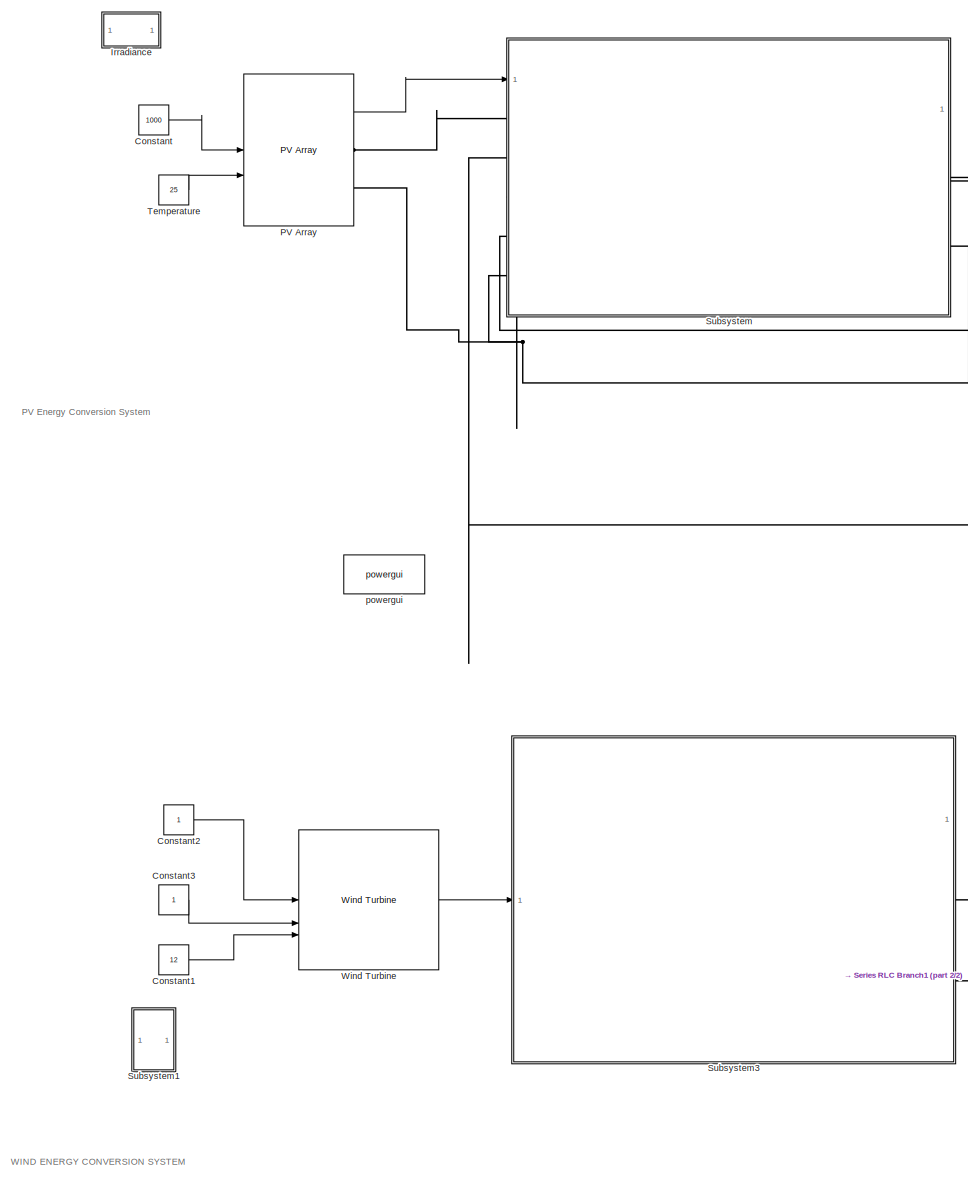
[diagram: root canvas - part 1/2, left side, full height]
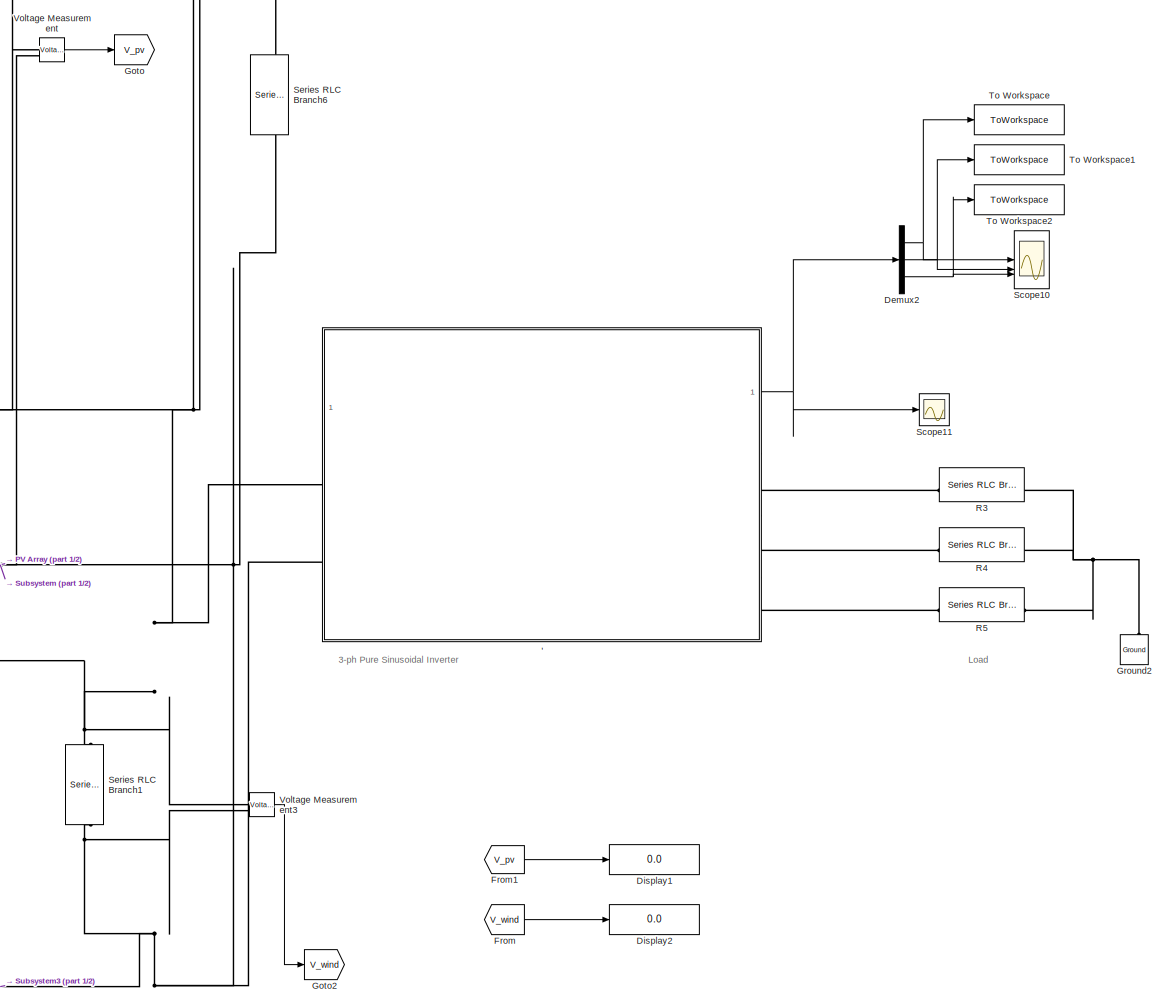
[diagram: root canvas - part 2/2, right side, full height]
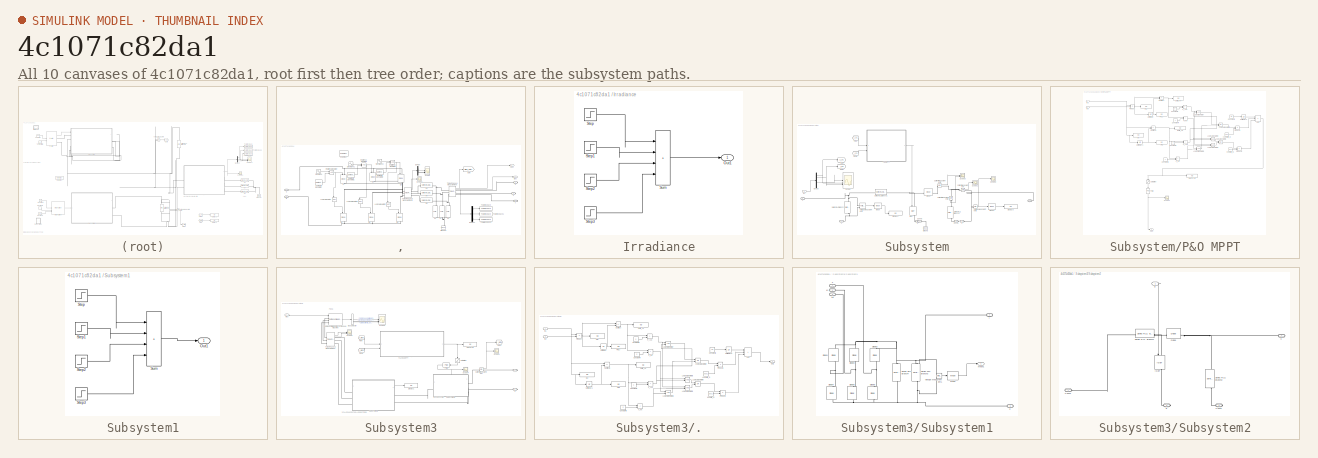
[diagram: thumbnail index - all 10 canvases of the model, root first then tree order]
MODEL slx_4c1071c82da1
KIND model
CONFIG AbsTol = auto
CONFIG EnableMultiTasking = off
CONFIG FixedStep = auto
CONFIG MaxStep = auto
CONFIG MinStep = auto
CONFIG RelTol = 1e-3
CONFIG SampleTimeConstraint = Unconstrained
CONFIG SolverName = VariableStepAuto
CONFIG StartTime = 0.0
CONFIG StopTime = 1
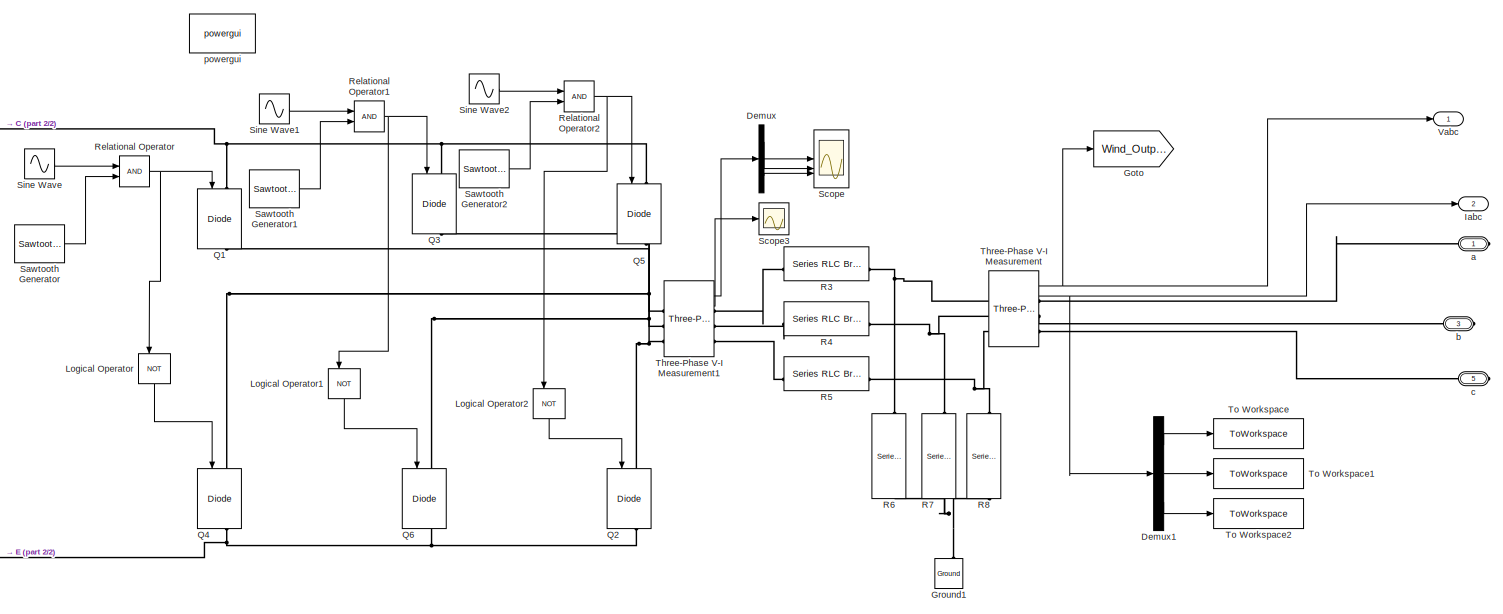
[diagram: , - part 1/2, most of the canvas]
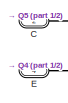
[diagram: , - part 2/2, middle left region]
BLOCK [SubSystem] ,
BLOCK [PMIOPort] ,/C
  Port = 2
  Side = Left
BLOCK [Demux] ,/Demux
  Outputs = 3
BLOCK [Demux] ,/Demux1
  Outputs = 3
BLOCK [PMIOPort] ,/E
  Port = 4
  Side = Left
BLOCK [Goto] ,/Goto
  GotoTag = Wind_Output
BLOCK [Reference] ,/Ground1  REF=spsGroundLib/Ground
  LibrarySourceBlock = sps_lib/Utilities/Ground
  NameLocation = right
  SourceBlock = spsGroundLib/Ground
  SourceType = Ground
BLOCK [Outport] ,/Iabc
  Port = 2
BLOCK [Logic] ,/Logical Operator
  AllPortsSameDT = off
  NameLocation = left
  Operator = NOT
  OutDataTypeStr = boolean
BLOCK [Logic] ,/Logical Operator1
  AllPortsSameDT = off
  NameLocation = left
  Operator = NOT
  OutDataTypeStr = boolean
BLOCK [Logic] ,/Logical Operator2
  AllPortsSameDT = off
  NameLocation = left
  Operator = NOT
  OutDataTypeStr = boolean
BLOCK [Reference] ,/Q1  REF=spsIGBTDiodeLib/IGBT//Diode
  LibrarySourceBlock = sps_lib/Power Electronics/IGBT//Diode
  NameLocation = left
  SourceBlock = spsIGBTDiodeLib/IGBT//Diode
  SourceType = IGBT/Diode
BLOCK [Reference] ,/Q2  REF=spsIGBTDiodeLib/IGBT//Diode
  LibrarySourceBlock = sps_lib/Power Electronics/IGBT//Diode
  NameLocation = left
  SourceBlock = spsIGBTDiodeLib/IGBT//Diode
  SourceType = IGBT/Diode
BLOCK [Reference] ,/Q3  REF=spsIGBTDiodeLib/IGBT//Diode
  LibrarySourceBlock = sps_lib/Power Electronics/IGBT//Diode
  NameLocation = left
  SourceBlock = spsIGBTDiodeLib/IGBT//Diode
  SourceType = IGBT/Diode
BLOCK [Reference] ,/Q4  REF=spsIGBTDiodeLib/IGBT//Diode
  LibrarySourceBlock = sps_lib/Power Electronics/IGBT//Diode
  NameLocation = left
  SourceBlock = spsIGBTDiodeLib/IGBT//Diode
  SourceType = IGBT/Diode
BLOCK [Reference] ,/Q5  REF=spsIGBTDiodeLib/IGBT//Diode
  LibrarySourceBlock = sps_lib/Power Electronics/IGBT//Diode
  NameLocation = left
  SourceBlock = spsIGBTDiodeLib/IGBT//Diode
  SourceType = IGBT/Diode
BLOCK [Reference] ,/Q6  REF=spsIGBTDiodeLib/IGBT//Diode
  LibrarySourceBlock = sps_lib/Power Electronics/IGBT//Diode
  NameLocation = left
  SourceBlock = spsIGBTDiodeLib/IGBT//Diode
  SourceType = IGBT/Diode
BLOCK [Reference] ,/R3  REF=spsSeriesRLCBranchLib/Series RLC Branch
  LibrarySourceBlock = sps_lib/Passives/Series RLC Branch
  SourceBlock = spsSeriesRLCBranchLib/Series RLC Branch
  SourceType = Series RLC Branch
BLOCK [Reference] ,/R4  REF=spsSeriesRLCBranchLib/Series RLC Branch
  LibrarySourceBlock = sps_lib/Passives/Series RLC Branch
  SourceBlock = spsSeriesRLCBranchLib/Series RLC Branch
  SourceType = Series RLC Branch
BLOCK [Reference] ,/R5  REF=spsSeriesRLCBranchLib/Series RLC Branch
  LibrarySourceBlock = sps_lib/Passives/Series RLC Branch
  SourceBlock = spsSeriesRLCBranchLib/Series RLC Branch
  SourceType = Series RLC Branch
BLOCK [Reference] ,/R6  REF=spsSeriesRLCBranchLib/Series RLC Branch
  LibrarySourceBlock = sps_lib/Passives/Series RLC Branch
  NameLocation = left
  SourceBlock = spsSeriesRLCBranchLib/Series RLC Branch
  SourceType = Series RLC Branch
BLOCK [Reference] ,/R7  REF=spsSeriesRLCBranchLib/Series RLC Branch
  LibrarySourceBlock = sps_lib/Passives/Series RLC Branch
  NameLocation = left
  SourceBlock = spsSeriesRLCBranchLib/Series RLC Branch
  SourceType = Series RLC Branch
BLOCK [Reference] ,/R8  REF=spsSeriesRLCBranchLib/Series RLC Branch
  LibrarySourceBlock = sps_lib/Passives/Series RLC Branch
  NameLocation = left
  SourceBlock = spsSeriesRLCBranchLib/Series RLC Branch
  SourceType = Series RLC Branch
BLOCK [RelationalOperator] ,/Relational Operator
  InputSameDT = off
  OutDataTypeStr = boolean
BLOCK [RelationalOperator] ,/Relational Operator1
  InputSameDT = off
  OutDataTypeStr = boolean
BLOCK [RelationalOperator] ,/Relational Operator2
  InputSameDT = off
  OutDataTypeStr = boolean
BLOCK [Reference] ,/Sawtooth Generator  REF=spsSawtoothGeneratorLib/Sawtooth
Generator
  LibrarySourceBlock = sps_lib/Sources/Signal Generator Sources/Sawtooth\nGenerator
  SourceBlock = spsSawtoothGeneratorLib/Sawtooth\nGenerator
  SourceType = Sawtooth Generator
BLOCK [Reference] ,/Sawtooth Generator1  REF=spsSawtoothGeneratorLib/Sawtooth
Generator
  LibrarySourceBlock = sps_lib/Sources/Signal Generator Sources/Sawtooth\nGenerator
  SourceBlock = spsSawtoothGeneratorLib/Sawtooth\nGenerator
  SourceType = Sawtooth Generator
BLOCK [Reference] ,/Sawtooth Generator2  REF=spsSawtoothGeneratorLib/Sawtooth
Generator
  LibrarySourceBlock = sps_lib/Sources/Signal Generator Sources/Sawtooth\nGenerator
  SourceBlock = spsSawtoothGeneratorLib/Sawtooth\nGenerator
  SourceType = Sawtooth Generator
BLOCK [Scope] ,/Scope
  Floating = off
  NumInputPorts = 3
  ScopeSpecificationString = Simulink.scopes.TimeScopeBlockCfg('CurrentConfiguration', extmgr.ConfigurationSet(extmgr.Configuration('Core','General UI',true),extmgr.Configuration('Core','Source UI',true),extmgr.Configuration('Sources','WiredSimulink',true,'DataLoggingLimitDataPoints',true,'DataLoggingSaveFormat','Array','DataLoggingDecimation','1','DataLoggingDecimateData',true),extmgr.Configuration('Visuals','Time Domain',tr...<+3336ch>
BLOCK [Scope] ,/Scope3
  Floating = off
  NumInputPorts = 1
  ScopeSpecificationString = Simulink.scopes.TimeScopeBlockCfg('CurrentConfiguration', extmgr.ConfigurationSet(extmgr.Configuration('Core','General UI',true),extmgr.Configuration('Core','Source UI',true),extmgr.Configuration('Sources','WiredSimulink',true,'DataLoggingVariableName','ScopeData3'),extmgr.Configuration('Visuals','Time Domain',true,'SerializedDisplays',{struct('MinYLimReal','-0.55918','MaxYLimReal','5.03265','YLab...<+1691ch>
BLOCK [Sin] ,/Sine Wave
  Amplitude = 0.9
  Frequency = 2*pi*50
  SampleTime = 0
BLOCK [Sin] ,/Sine Wave1
  Amplitude = 0.9
  Frequency = 2*pi*50
  Phase = 120*(pi/180)
  SampleTime = 0
BLOCK [Sin] ,/Sine Wave2
  Amplitude = 0.9
  Frequency = 2*pi*50
  Phase = 240*(pi/180)
  SampleTime = 0
BLOCK [Reference] ,/Three-Phase V-I Measurement  REF=spsThreePhaseVIMeasurementLib/Three-Phase
V-I Measurement
  LibrarySourceBlock = sps_lib/Sensors and Measurements/Three-Phase\nV-I Measurement
  SourceBlock = spsThreePhaseVIMeasurementLib/Three-Phase\nV-I Measurement
  SourceType = Three-Phase VI Measurement
BLOCK [Reference] ,/Three-Phase V-I Measurement1  REF=spsThreePhaseVIMeasurementLib/Three-Phase
V-I Measurement
  LibrarySourceBlock = sps_lib/Sensors and Measurements/Three-Phase\nV-I Measurement
  SourceBlock = spsThreePhaseVIMeasurementLib/Three-Phase\nV-I Measurement
  SourceType = Three-Phase VI Measurement
BLOCK [ToWorkspace] ,/To Workspace
  FixptAsFi = on
  MaxDataPoints = inf
  SampleTime = -1
  SaveFormat = Structure With Time
  VariableName = Ia
BLOCK [ToWorkspace] ,/To Workspace1
  FixptAsFi = on
  MaxDataPoints = inf
  SampleTime = -1
  SaveFormat = Structure With Time
  VariableName = Ib
BLOCK [ToWorkspace] ,/To Workspace2
  FixptAsFi = on
  MaxDataPoints = inf
  SampleTime = -1
  SaveFormat = Structure With Time
  VariableName = Ic
BLOCK [Outport] ,/Vabc
BLOCK [PMIOPort] ,/a
  Side = Right
BLOCK [PMIOPort] ,/b
  Port = 3
  Side = Right
BLOCK [PMIOPort] ,/c
  Port = 5
  Side = Right
BLOCK [Reference] ,/powergui  REF=spspowerguiLib/powergui
  LibrarySourceBlock = sps_lib/powergui
  Priority = 1
  SourceBlock = spspowerguiLib/powergui
  SourceType = PSB option menu block
BLOCK [Constant] Constant
  Value = 1000
BLOCK [Constant] Constant1
  Value = 12
BLOCK [Constant] Constant2
BLOCK [Constant] Constant3
BLOCK [Demux] Demux2
  Outputs = 3
BLOCK [Display] Display1
  Decimation = 1
BLOCK [Display] Display2
  Decimation = 1
BLOCK [From] From
  GotoTag = V_wind
BLOCK [From] From1
  GotoTag = V_pv
BLOCK [Goto] Goto
  GotoTag = V_pv
BLOCK [Goto] Goto2
  GotoTag = V_wind
BLOCK [Reference] Ground2  REF=spsGroundLib/Ground
  LibrarySourceBlock = sps_lib/Utilities/Ground
  NameLocation = right
  SourceBlock = spsGroundLib/Ground
  SourceType = Ground
BLOCK [SubSystem] Irradiance
BLOCK [Outport] Irradiance/Out1
BLOCK [Step] Irradiance/Step
  After = 1200
  Before = 1200
  SampleTime = 0
  Time = 0
BLOCK [Step] Irradiance/Step1
  After = -300
  SampleTime = 0
  Time = 3
BLOCK [Step] Irradiance/Step2
  After = -250
  SampleTime = 0
  Time = 5
BLOCK [Step] Irradiance/Step3
  After = 350
  SampleTime = 0
  Time = 8
BLOCK [Sum] Irradiance/Sum
  IconShape = rectangular
  Inputs = |++++
BLOCK [Reference] PV Array  REF=spsPVArrayLib/PV Array
  LibrarySourceBlock = sps_lib/Sources/PV Array
  SourceBlock = spsPVArrayLib/PV Array
  SourceType = PV array
BLOCK [Reference] R3  REF=spsSeriesRLCBranchLib/Series RLC Branch
  LibrarySourceBlock = sps_lib/Passives/Series RLC Branch
  SourceBlock = spsSeriesRLCBranchLib/Series RLC Branch
  SourceType = Series RLC Branch
BLOCK [Reference] R4  REF=spsSeriesRLCBranchLib/Series RLC Branch
  LibrarySourceBlock = sps_lib/Passives/Series RLC Branch
  SourceBlock = spsSeriesRLCBranchLib/Series RLC Branch
  SourceType = Series RLC Branch
BLOCK [Reference] R5  REF=spsSeriesRLCBranchLib/Series RLC Branch
  LibrarySourceBlock = sps_lib/Passives/Series RLC Branch
  SourceBlock = spsSeriesRLCBranchLib/Series RLC Branch
  SourceType = Series RLC Branch
BLOCK [Scope] Scope10
  Floating = off
  NumInputPorts = 3
  ScopeSpecificationString = Simulink.scopes.TimeScopeBlockCfg('CurrentConfiguration', extmgr.ConfigurationSet(extmgr.Configuration('Core','General UI',true),extmgr.Configuration('Core','Source UI',true),extmgr.Configuration('Sources','WiredSimulink',true,'DataLoggingVariableName','ScopeData1','DataLoggingSaveFormat','Array','DataLoggingDecimation','1','DataLoggingDecimateData',true),extmgr.Configuration('Visuals','Time Domai...<+3280ch>
BLOCK [Scope] Scope11
  Floating = off
  NumInputPorts = 1
  ScopeSpecificationString = Simulink.scopes.TimeScopeBlockCfg('CurrentConfiguration', extmgr.ConfigurationSet(extmgr.Configuration('Core','General UI',true,'FigureColor',[0 0 1]),extmgr.Configuration('Core','Source UI',true),extmgr.Configuration('Sources','WiredSimulink',true,'DataLoggingVariableName','ScopeData2'),extmgr.Configuration('Visuals','Time Domain',true,'SerializedDisplays',{struct('MinYLimReal','-21.22037','MaxYL...<+1592ch>
BLOCK [Reference] Series RLC Branch1  REF=spsSeriesRLCBranchLib/Series RLC Branch
  LibrarySourceBlock = sps_lib/Passives/Series RLC Branch
  NameLocation = left
  SourceBlock = spsSeriesRLCBranchLib/Series RLC Branch
  SourceType = Series RLC Branch
BLOCK [Reference] Series RLC Branch6  REF=spsSeriesRLCBranchLib/Series RLC Branch
  LibrarySourceBlock = sps_lib/Passives/Series RLC Branch
  NameLocation = left
  SourceBlock = spsSeriesRLCBranchLib/Series RLC Branch
  SourceType = Series RLC Branch
BLOCK [SubSystem] Subsystem
BLOCK [PMIOPort] Subsystem/+
  Side = Left
BLOCK [PMIOPort] Subsystem/-
  Port = 2
  Side = Left
BLOCK [PMIOPort] Subsystem/-1
  Port = 3
  Side = Left
BLOCK [PMIOPort] Subsystem/-2
  Port = 7
  Side = Left
BLOCK [PMIOPort] Subsystem/Conn5
  Port = 5
  Side = Left
BLOCK [PMIOPort] Subsystem/Conn6
  Port = 6
  Side = Right
BLOCK [Reference] Subsystem/Current Measurement  REF=spsCurrentMeasurementLib/Current Measurement
  LibrarySourceBlock = sps_lib/Sensors and Measurements/Current Measurement
  SourceBlock = spsCurrentMeasurementLib/Current Measurement
  SourceType = Current Measurement
  UserDataPersistent = on
BLOCK [Reference] Subsystem/Current Measurement1  REF=spsCurrentMeasurementLib/Current Measurement
  LibrarySourceBlock = sps_lib/Sensors and Measurements/Current Measurement
  SourceBlock = spsCurrentMeasurementLib/Current Measurement
  SourceType = Current Measurement
  UserDataPersistent = on
BLOCK [Reference] Subsystem/Current Measurement2  REF=spsCurrentMeasurementLib/Current Measurement
  LibrarySourceBlock = sps_lib/Sensors and Measurements/Current Measurement
  NameLocation = left
  SourceBlock = spsCurrentMeasurementLib/Current Measurement
  SourceType = Current Measurement
  UserDataPersistent = on
BLOCK [Demux] Subsystem/Demux
  Outputs = 5
BLOCK [Reference] Subsystem/Diode  REF=spsDiodeLib/Diode
  LibrarySourceBlock = sps_lib/Power Electronics/Diode
  SourceBlock = spsDiodeLib/Diode
  SourceType = Diode
BLOCK [Display] Subsystem/Display1
  Decimation = 1
BLOCK [Display] Subsystem/Display3
  Decimation = 1
BLOCK [PMIOPort] Subsystem/E
  Port = 4
  Side = Right
BLOCK [From] Subsystem/From
  GotoTag = V_PV
BLOCK [From] Subsystem/From1
  GotoTag = I_PV
BLOCK [Goto] Subsystem/Goto
  GotoTag = V_PV
BLOCK [Goto] Subsystem/Goto1
  GotoTag = I_PV
BLOCK [Reference] Subsystem/Ground  REF=spsGroundLib/Ground
  LibrarySourceBlock = sps_lib/Utilities/Ground
  NameLocation = right
  SourceBlock = spsGroundLib/Ground
  SourceType = Ground
BLOCK [Reference] Subsystem/IGBT  REF=spsIGBTLib/IGBT
  LibrarySourceBlock = sps_lib/Power Electronics/IGBT
  NameLocation = left
  SourceBlock = spsIGBTLib/IGBT
  SourceType = IGBT
BLOCK [Inport] Subsystem/In3
BLOCK [Reference] Subsystem/Mean  REF=spsMeanLib/Mean
  LibrarySourceBlock = sps_lib/Sensors and Measurements/Mean
  SourceBlock = spsMeanLib/Mean
  SourceType = Mean
BLOCK [Reference] Subsystem/Mean1  REF=spsMeanLib/Mean
  LibrarySourceBlock = sps_lib/Sensors and Measurements/Mean
  SourceBlock = spsMeanLib/Mean
  SourceType = Mean
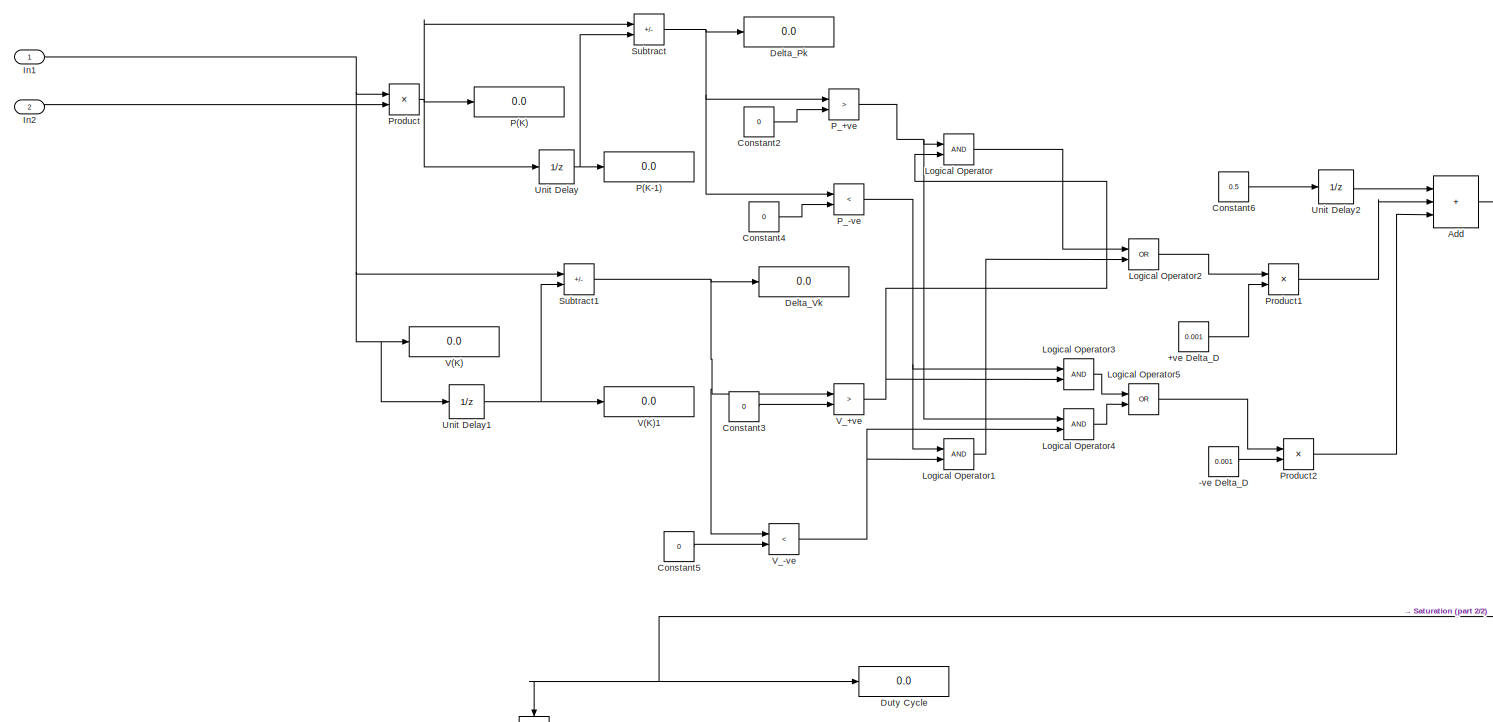
[diagram: Subsystem/P&O MPPT - part 1/2, full width, top band]
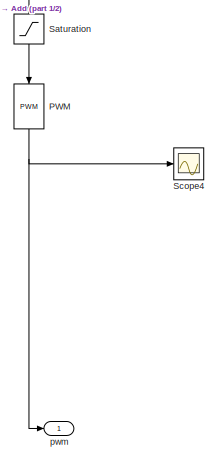
[diagram: Subsystem/P&O MPPT - part 2/2, bottom center region]
BLOCK [SubSystem] Subsystem/P&O MPPT
BLOCK [Constant] Subsystem/P&O MPPT/+ve Delta_D
  Value = 0.001
BLOCK [Constant] Subsystem/P&O MPPT/-ve Delta_D
  Value = 0.001
BLOCK [Sum] Subsystem/P&O MPPT/Add
  IconShape = rectangular
  Inputs = +++
BLOCK [Constant] Subsystem/P&O MPPT/Constant2
  Value = 0
BLOCK [Constant] Subsystem/P&O MPPT/Constant3
  Value = 0
BLOCK [Constant] Subsystem/P&O MPPT/Constant4
  Value = 0
BLOCK [Constant] Subsystem/P&O MPPT/Constant5
  Value = 0
BLOCK [Constant] Subsystem/P&O MPPT/Constant6
  Value = 0.5
BLOCK [Display] Subsystem/P&O MPPT/Delta_Pk
  Decimation = 1
BLOCK [Display] Subsystem/P&O MPPT/Delta_Vk
  Decimation = 1
BLOCK [Display] Subsystem/P&O MPPT/Duty Cycle
  Decimation = 1
BLOCK [Inport] Subsystem/P&O MPPT/In1
BLOCK [Inport] Subsystem/P&O MPPT/In2
  Port = 2
BLOCK [Logic] Subsystem/P&O MPPT/Logical Operator
  AllPortsSameDT = off
  OutDataTypeStr = boolean
BLOCK [Logic] Subsystem/P&O MPPT/Logical Operator1
  AllPortsSameDT = off
  OutDataTypeStr = boolean
BLOCK [Logic] Subsystem/P&O MPPT/Logical Operator2
  AllPortsSameDT = off
  Operator = OR
  OutDataTypeStr = boolean
BLOCK [Logic] Subsystem/P&O MPPT/Logical Operator3
  AllPortsSameDT = off
  OutDataTypeStr = boolean
BLOCK [Logic] Subsystem/P&O MPPT/Logical Operator4
  AllPortsSameDT = off
  OutDataTypeStr = boolean
BLOCK [Logic] Subsystem/P&O MPPT/Logical Operator5
  AllPortsSameDT = off
  Operator = OR
  OutDataTypeStr = boolean
BLOCK [Display] Subsystem/P&O MPPT/P(K)
  Decimation = 1
BLOCK [Display] Subsystem/P&O MPPT/P(K-1)
  Decimation = 1
BLOCK [Reference] Subsystem/P&O MPPT/PWM  REF=simulink/Discontinuities/PWM
  DisableCoverage = on
  NameLocation = left
  SourceBlock = simulink/Discontinuities/PWM
  SourceType = PWM
BLOCK [RelationalOperator] Subsystem/P&O MPPT/P_+ve
  InputSameDT = off
  Operator = >
  OutDataTypeStr = boolean
  RndMeth = Simplest
BLOCK [RelationalOperator] Subsystem/P&O MPPT/P_-ve
  InputSameDT = off
  Operator = <
  OutDataTypeStr = boolean
  RndMeth = Simplest
BLOCK [Product] Subsystem/P&O MPPT/Product
BLOCK [Product] Subsystem/P&O MPPT/Product1
BLOCK [Product] Subsystem/P&O MPPT/Product2
BLOCK [Saturate] Subsystem/P&O MPPT/Saturation
  LowerLimit = 0.1
  NameLocation = left
  UpperLimit = 0.9
BLOCK [Scope] Subsystem/P&O MPPT/Scope4
  Floating = off
  NumInputPorts = 1
  ScopeSpecificationString = Simulink.scopes.TimeScopeBlockCfg('CurrentConfiguration', extmgr.ConfigurationSet(extmgr.Configuration('Core','General UI',true,'FigureColor',[1 1 0]),extmgr.Configuration('Core','Source UI',true),extmgr.Configuration('Sources','WiredSimulink',true),extmgr.Configuration('Visuals','Time Domain',true,'SerializedDisplays',{struct('MinYLimReal','-0.125','MaxYLimReal','1.125','YLabelReal','','MinYLimMa...<+1618ch>
BLOCK [Sum] Subsystem/P&O MPPT/Subtract
  IconShape = rectangular
  Inputs = +-
BLOCK [Sum] Subsystem/P&O MPPT/Subtract1
  IconShape = rectangular
  Inputs = +-
BLOCK [UnitDelay] Subsystem/P&O MPPT/Unit Delay
  HasFrameUpgradeWarning = on
  SampleTime = -1
BLOCK [UnitDelay] Subsystem/P&O MPPT/Unit Delay1
  HasFrameUpgradeWarning = on
  SampleTime = -1
BLOCK [UnitDelay] Subsystem/P&O MPPT/Unit Delay2
  HasFrameUpgradeWarning = on
  SampleTime = -1
BLOCK [Display] Subsystem/P&O MPPT/V(K)
  Decimation = 1
BLOCK [Display] Subsystem/P&O MPPT/V(K)1
  Decimation = 1
BLOCK [RelationalOperator] Subsystem/P&O MPPT/V_+ve
  InputSameDT = off
  Operator = >
  OutDataTypeStr = boolean
  RndMeth = Simplest
BLOCK [RelationalOperator] Subsystem/P&O MPPT/V_-ve
  InputSameDT = off
  Operator = <
  OutDataTypeStr = boolean
  RndMeth = Simplest
BLOCK [Outport] Subsystem/P&O MPPT/pwm
BLOCK [Scope] Subsystem/Scope
  Floating = off
  NumInputPorts = 3
  ScopeSpecificationString = Simulink.scopes.TimeScopeBlockCfg('CurrentConfiguration', extmgr.ConfigurationSet(extmgr.Configuration('Core','General UI',true),extmgr.Configuration('Core','Source UI',true),extmgr.Configuration('Sources','WiredSimulink',true,'DataLoggingVariableName','ScopeData1'),extmgr.Configuration('Visuals','Time Domain',true,'SerializedDisplays',{struct('MinYLimReal','900.00000','MaxYLimReal','1100.00000','...<+3376ch>
BLOCK [Scope] Subsystem/Scope1
  Floating = off
  NumInputPorts = 1
  ScopeSpecificationString = Simulink.scopes.TimeScopeBlockCfg('CurrentConfiguration', extmgr.ConfigurationSet(extmgr.Configuration('Core','General UI',true),extmgr.Configuration('Core','Source UI',true),extmgr.Configuration('Sources','WiredSimulink',true,'DataLoggingVariableName','ScopeData2'),extmgr.Configuration('Visuals','Time Domain',true,'SerializedDisplays',{struct('MinYLimReal','-3.53623','MaxYLimReal','31.82607','YLa...<+1571ch>
BLOCK [Scope] Subsystem/Scope2
  Floating = off
  NumInputPorts = 1
  ScopeSpecificationString = Simulink.scopes.TimeScopeBlockCfg('CurrentConfiguration', extmgr.ConfigurationSet(extmgr.Configuration('Core','General UI',true),extmgr.Configuration('Core','Source UI',true),extmgr.Configuration('Sources','WiredSimulink',true,'DataLoggingVariableName','ScopeData3'),extmgr.Configuration('Visuals','Time Domain',true,'SerializedDisplays',{struct('MinYLimReal','-29.10486','MaxYLimReal','261.94372','Y...<+1551ch>
BLOCK [Scope] Subsystem/Scope3
  Floating = off
  NumInputPorts = 2
  ScopeSpecificationString = Simulink.scopes.TimeScopeBlockCfg('CurrentConfiguration', extmgr.ConfigurationSet(extmgr.Configuration('Core','General UI',true),extmgr.Configuration('Core','Source UI',true),extmgr.Configuration('Sources','WiredSimulink',true,'DataLoggingVariableName','ScopeData4'),extmgr.Configuration('Visuals','Time Domain',true,'SerializedDisplays',{struct('MinYLimReal','-1.13646','MaxYLimReal','8.81548','YLab...<+2426ch>
BLOCK [Reference] Subsystem/Series RLC Branch  REF=spsSeriesRLCBranchLib/Series RLC Branch
  LibrarySourceBlock = sps_lib/Passives/Series RLC Branch
  NameLocation = left
  SourceBlock = spsSeriesRLCBranchLib/Series RLC Branch
  SourceType = Series RLC Branch
BLOCK [Reference] Subsystem/Series RLC Branch1  REF=spsSeriesRLCBranchLib/Series RLC Branch
  LibrarySourceBlock = sps_lib/Passives/Series RLC Branch
  SourceBlock = spsSeriesRLCBranchLib/Series RLC Branch
  SourceType = Series RLC Branch
BLOCK [Reference] Subsystem/Series RLC Branch2  REF=spsSeriesRLCBranchLib/Series RLC Branch
  LibrarySourceBlock = sps_lib/Passives/Series RLC Branch
  NameLocation = left
  SourceBlock = spsSeriesRLCBranchLib/Series RLC Branch
  SourceType = Series RLC Branch
BLOCK [Reference] Subsystem/Voltage Measurement1  REF=spsVoltageMeasurementLib/Voltage Measurement
  LibrarySourceBlock = sps_lib/Sensors and Measurements/Voltage Measurement
  SourceBlock = spsVoltageMeasurementLib/Voltage Measurement
  SourceType = Voltage Measurement
  UserDataPersistent = on
BLOCK [Reference] Subsystem/Voltage Measurement3  REF=spsVoltageMeasurementLib/Voltage Measurement
  LibrarySourceBlock = sps_lib/Sensors and Measurements/Voltage Measurement
  SourceBlock = spsVoltageMeasurementLib/Voltage Measurement
  SourceType = Voltage Measurement
  UserDataPersistent = on
BLOCK [SubSystem] Subsystem1
BLOCK [Outport] Subsystem1/Out1
BLOCK [Step] Subsystem1/Step
  After = 15
  Before = 15
  SampleTime = 0
  Time = 0
BLOCK [Step] Subsystem1/Step1
  After = -3
  SampleTime = 0
  Time = 1.5
BLOCK [Step] Subsystem1/Step2
  After = -2.5
  SampleTime = 0
  Time = 7
BLOCK [Step] Subsystem1/Step3
  After = 3.5
  SampleTime = 0
  Time = 8.5
BLOCK [Sum] Subsystem1/Sum
  IconShape = rectangular
  Inputs = |++++
BLOCK [SubSystem] Subsystem3
BLOCK [PMIOPort] Subsystem3/-
  Side = Right
BLOCK [SubSystem] Subsystem3/.
BLOCK [Constant] Subsystem3/./+ve Delta_D
  Value = 0.001
BLOCK [Constant] Subsystem3/./-ve Delta_D
  Value = 0.001
BLOCK [Sum] Subsystem3/./Add
  IconShape = rectangular
  Inputs = +++
BLOCK [Constant] Subsystem3/./Constant2
  Value = 0
BLOCK [Constant] Subsystem3/./Constant3
  Value = 0
BLOCK [Constant] Subsystem3/./Constant4
  Value = 0
BLOCK [Constant] Subsystem3/./Constant5
  Value = 0
BLOCK [Constant] Subsystem3/./Constant6
  Value = 0.5
BLOCK [Display] Subsystem3/./Delta_Pk
  Decimation = 1
BLOCK [Display] Subsystem3/./Delta_Vk
  Decimation = 1
BLOCK [Inport] Subsystem3/./In1
BLOCK [Inport] Subsystem3/./In2
  Port = 2
BLOCK [Logic] Subsystem3/./Logical Operator
  AllPortsSameDT = off
  OutDataTypeStr = boolean
BLOCK [Logic] Subsystem3/./Logical Operator1
  AllPortsSameDT = off
  OutDataTypeStr = boolean
BLOCK [Logic] Subsystem3/./Logical Operator2
  AllPortsSameDT = off
  Operator = OR
  OutDataTypeStr = boolean
BLOCK [Logic] Subsystem3/./Logical Operator3
  AllPortsSameDT = off
  OutDataTypeStr = boolean
BLOCK [Logic] Subsystem3/./Logical Operator4
  AllPortsSameDT = off
  OutDataTypeStr = boolean
BLOCK [Logic] Subsystem3/./Logical Operator5
  AllPortsSameDT = off
  Operator = OR
  OutDataTypeStr = boolean
BLOCK [Outport] Subsystem3/./Out1
BLOCK [Display] Subsystem3/./P(K)
  Decimation = 1
BLOCK [Display] Subsystem3/./P(K-1)
  Decimation = 1
BLOCK [RelationalOperator] Subsystem3/./P_+ve
  InputSameDT = off
  Operator = >
  OutDataTypeStr = boolean
  RndMeth = Simplest
BLOCK [RelationalOperator] Subsystem3/./P_-ve
  InputSameDT = off
  Operator = <
  OutDataTypeStr = boolean
  RndMeth = Simplest
BLOCK [Product] Subsystem3/./Product
BLOCK [Product] Subsystem3/./Product1
BLOCK [Product] Subsystem3/./Product2
BLOCK [Sum] Subsystem3/./Subtract
  IconShape = rectangular
  Inputs = +-
BLOCK [Sum] Subsystem3/./Subtract1
  IconShape = rectangular
  Inputs = +-
BLOCK [UnitDelay] Subsystem3/./Unit Delay
  HasFrameUpgradeWarning = on
  SampleTime = -1
BLOCK [UnitDelay] Subsystem3/./Unit Delay1
  HasFrameUpgradeWarning = on
  SampleTime = -1
BLOCK [UnitDelay] Subsystem3/./Unit Delay2
  HasFrameUpgradeWarning = on
  SampleTime = -1
BLOCK [Display] Subsystem3/./V(K)
  Decimation = 1
BLOCK [Display] Subsystem3/./V(K)1
  Decimation = 1
BLOCK [RelationalOperator] Subsystem3/./V_+ve
  InputSameDT = off
  Operator = >
  OutDataTypeStr = boolean
  RndMeth = Simplest
BLOCK [RelationalOperator] Subsystem3/./V_-ve
  InputSameDT = off
  Operator = <
  OutDataTypeStr = boolean
  RndMeth = Simplest
BLOCK [BusSelector] Subsystem3/Bus Selector
  OutputSignals = Rotor speed wm (rad/s),Electromagnetic torque Te (N*m),Stator current is_a (A)
BLOCK [Reference] Subsystem3/Current Measurement  REF=spsCurrentMeasurementLib/Current Measurement
  LibrarySourceBlock = sps_lib/Sensors and Measurements/Current Measurement
  SourceBlock = spsCurrentMeasurementLib/Current Measurement
  SourceType = Current Measurement
  UserDataPersistent = on
BLOCK [Display] Subsystem3/Display1
  Decimation = 1
BLOCK [Display] Subsystem3/Duty Cycle
  Decimation = 1
BLOCK [From] Subsystem3/From
  GotoTag = V_wind
BLOCK [From] Subsystem3/From1
  GotoTag = I_wind
BLOCK [Goto] Subsystem3/Goto1
  GotoTag = I_wind
BLOCK [Reference] Subsystem3/PWM  REF=simulink/Discontinuities/PWM
  DisableCoverage = on
  NameLocation = top
  SourceBlock = simulink/Discontinuities/PWM
  SourceType = PWM
BLOCK [Reference] Subsystem3/Permanent Magnet Synchronous Machine  REF=spsPermanentMagnetSynchronousMachineLib/Permanent Magnet
Synchronous Machine
  LibrarySourceBlock = sps_lib/Electrical Machines/Permanent Magnet\nSynchronous Machine
  SourceBlock = spsPermanentMagnetSynchronousMachineLib/Permanent Magnet\nSynchronous Machine
  SourceType = Permanent Magnet Synchronous Machine
BLOCK [Saturate] Subsystem3/Saturation
  LowerLimit = 0.1
  NameLocation = left
  UpperLimit = 0.9
BLOCK [Scope] Subsystem3/Scope1
  Floating = off
  NumInputPorts = 1
  ScopeSpecificationString = Simulink.scopes.TimeScopeBlockCfg('CurrentConfiguration', extmgr.ConfigurationSet(extmgr.Configuration('Core','General UI',true,'FigureColor',[0 1 1]),extmgr.Configuration('Core','Source UI',true),extmgr.Configuration('Sources','WiredSimulink',true,'DataLoggingVariableName','ScopeData5'),extmgr.Configuration('Visuals','Time Domain',true,'SerializedDisplays',{struct('MinYLimReal','-14.05961','MaxYL...<+1737ch>
BLOCK [Scope] Subsystem3/Scope4
  Floating = off
  NumInputPorts = 1
  ScopeSpecificationString = Simulink.scopes.TimeScopeBlockCfg('CurrentConfiguration', extmgr.ConfigurationSet(extmgr.Configuration('Core','General UI',true),extmgr.Configuration('Core','Source UI',true),extmgr.Configuration('Sources','WiredSimulink',true,'DataLoggingVariableName','ScopeData7'),extmgr.Configuration('Visuals','Time Domain',true,'SerializedDisplays',{struct('MinYLimReal','-0.125','MaxYLimReal','1.125','YLabelRe...<+1565ch>
BLOCK [Scope] Subsystem3/Scope5
  Floating = off
  NumInputPorts = 2
  ScopeSpecificationString = Simulink.scopes.TimeScopeBlockCfg('CurrentConfiguration', extmgr.ConfigurationSet(extmgr.Configuration('Core','General UI',true,'FigureColor',[0 1 1]),extmgr.Configuration('Core','Source UI',true),extmgr.Configuration('Sources','WiredSimulink',true,'DataLoggingVariableName','ScopeData8'),extmgr.Configuration('Visuals','Time Domain',true,'SerializedDisplays',{struct('MinYLimReal','-39.89621','MaxYL...<+2333ch>
BLOCK [Scope] Subsystem3/Scope6
  Floating = off
  NumInputPorts = 3
  ScopeSpecificationString = Simulink.scopes.TimeScopeBlockCfg('CurrentConfiguration', extmgr.ConfigurationSet(extmgr.Configuration('Core','General UI',true,'FigureColor',[0 1 1]),extmgr.Configuration('Core','Source UI',true),extmgr.Configuration('Sources','WiredSimulink',true,'DataLoggingVariableName','ScopeData9'),extmgr.Configuration('Visuals','Time Domain',true,'SerializedDisplays',{struct('MinYLimReal','-2.82964','MaxYLi...<+3205ch>
BLOCK [SubSystem] Subsystem3/Subsystem1
BLOCK [PMIOPort] Subsystem3/Subsystem1/+
  Port = 4
  Side = Right
BLOCK [Reference] Subsystem3/Subsystem1/Diode1  REF=spsDiodeLib/Diode
  LibrarySourceBlock = sps_lib/Power Electronics/Diode
  NameLocation = right
  SourceBlock = spsDiodeLib/Diode
  SourceType = Diode
BLOCK [Reference] Subsystem3/Subsystem1/Diode2  REF=spsDiodeLib/Diode
  LibrarySourceBlock = sps_lib/Power Electronics/Diode
  NameLocation = right
  SourceBlock = spsDiodeLib/Diode
  SourceType = Diode
BLOCK [Reference] Subsystem3/Subsystem1/Diode3  REF=spsDiodeLib/Diode
  LibrarySourceBlock = sps_lib/Power Electronics/Diode
  NameLocation = right
  SourceBlock = spsDiodeLib/Diode
  SourceType = Diode
BLOCK [Reference] Subsystem3/Subsystem1/Diode4  REF=spsDiodeLib/Diode
  LibrarySourceBlock = sps_lib/Power Electronics/Diode
  NameLocation = right
  SourceBlock = spsDiodeLib/Diode
  SourceType = Diode
BLOCK [Reference] Subsystem3/Subsystem1/Diode5  REF=spsDiodeLib/Diode
  LibrarySourceBlock = sps_lib/Power Electronics/Diode
  NameLocation = right
  SourceBlock = spsDiodeLib/Diode
  SourceType = Diode
BLOCK [Reference] Subsystem3/Subsystem1/Diode6  REF=spsDiodeLib/Diode
  LibrarySourceBlock = sps_lib/Power Electronics/Diode
  NameLocation = right
  SourceBlock = spsDiodeLib/Diode
  SourceType = Diode
BLOCK [Reference] Subsystem3/Subsystem1/Mean  REF=spsMeanLib/Mean
  LibrarySourceBlock = sps_lib/Sensors and Measurements/Mean
  SourceBlock = spsMeanLib/Mean
  SourceType = Mean
BLOCK [Outport] Subsystem3/Subsystem1/Mean1
BLOCK [Reference] Subsystem3/Subsystem1/Series RLC Branch3  REF=spsSeriesRLCBranchLib/Series RLC Branch
  LibrarySourceBlock = sps_lib/Passives/Series RLC Branch
  NameLocation = left
  SourceBlock = spsSeriesRLCBranchLib/Series RLC Branch
  SourceType = Series RLC Branch
BLOCK [Reference] Subsystem3/Subsystem1/Series RLC Branch4  REF=spsSeriesRLCBranchLib/Series RLC Branch
  LibrarySourceBlock = sps_lib/Passives/Series RLC Branch
  NameLocation = left
  SourceBlock = spsSeriesRLCBranchLib/Series RLC Branch
  SourceType = Series RLC Branch
BLOCK [Reference] Subsystem3/Subsystem1/Voltage Measurement1  REF=spsVoltageMeasurementLib/Voltage Measurement
  LibrarySourceBlock = sps_lib/Sensors and Measurements/Voltage Measurement
  SourceBlock = spsVoltageMeasurementLib/Voltage Measurement
  SourceType = Voltage Measurement
  UserDataPersistent = on
BLOCK [PMIOPort] Subsystem3/Subsystem1/a
  Port = 5
  Side = Right
BLOCK [PMIOPort] Subsystem3/Subsystem1/k
  Side = Left
BLOCK [PMIOPort] Subsystem3/Subsystem1/k1
  Port = 2
  Side = Left
BLOCK [PMIOPort] Subsystem3/Subsystem1/k2
  Port = 3
  Side = Left
BLOCK [SubSystem] Subsystem3/Subsystem2
  PortSchema = {"entries":[{"content":{"sides":[{"content":{"connectorIds":["LConn1"]},"type":"ConnectorPlacement.EquallySpacedRectSide","uuid":"8b4d80fa-a07e-4510-b850-5263d03b0dea"},{"content":{"connectorIds":["RConn1","RConn2","RConn3"],"side":"RIGHT"},"type":"ConnectorPlacement.EquallySpacedRectSide","uuid":"d82ac879-8952-405d-86fe-c8d3c437f8a4"},{"content":{"connectorIds":["In1"],"side":"TOP"},"type":"Conne...<+268ch>
BLOCK [PMIOPort] Subsystem3/Subsystem2/Conn2
  Side = Left
BLOCK [PMIOPort] Subsystem3/Subsystem2/Conn4
  Port = 4
  Side = Right
BLOCK [Reference] Subsystem3/Subsystem2/Diode  REF=spsDiodeLib/Diode
  LibrarySourceBlock = sps_lib/Power Electronics/Diode
  SourceBlock = spsDiodeLib/Diode
  SourceType = Diode
BLOCK [PMIOPort] Subsystem3/Subsystem2/E
  Port = 3
  Side = Right
BLOCK [Reference] Subsystem3/Subsystem2/IGBT  REF=spsIGBTLib/IGBT
  LibrarySourceBlock = sps_lib/Power Electronics/IGBT
  NameLocation = left
  SourceBlock = spsIGBTLib/IGBT
  SourceType = IGBT
BLOCK [Reference] Subsystem3/Subsystem2/Series RLC Branch1  REF=spsSeriesRLCBranchLib/Series RLC Branch
  LibrarySourceBlock = sps_lib/Passives/Series RLC Branch
  SourceBlock = spsSeriesRLCBranchLib/Series RLC Branch
  SourceType = Series RLC Branch
BLOCK [Reference] Subsystem3/Subsystem2/Series RLC Branch2  REF=spsSeriesRLCBranchLib/Series RLC Branch
  LibrarySourceBlock = sps_lib/Passives/Series RLC Branch
  NameLocation = left
  SourceBlock = spsSeriesRLCBranchLib/Series RLC Branch
  SourceType = Series RLC Branch
BLOCK [Inport] Subsystem3/Subsystem2/g
BLOCK [PMIOPort] Subsystem3/Subsystem2/k
  Port = 2
  Side = Right
BLOCK [Reference] Subsystem3/Three-Phase V-I Measurement  REF=spsThreePhaseVIMeasurementLib/Three-Phase
V-I Measurement
  LibrarySourceBlock = sps_lib/Sensors and Measurements/Three-Phase\nV-I Measurement
  SourceBlock = spsThreePhaseVIMeasurementLib/Three-Phase\nV-I Measurement
  SourceType = Three-Phase VI Measurement
BLOCK [PMIOPort] Subsystem3/a
  Port = 2
  Side = Right
BLOCK [Inport] Subsystem3/mec
BLOCK [Constant] Temperature
  Value = 25
BLOCK [ToWorkspace] To Workspace
  FixptAsFi = on
  MaxDataPoints = inf
  SampleTime = -1
  SaveFormat = Structure With Time
  VariableName = Va
BLOCK [ToWorkspace] To Workspace1
  FixptAsFi = on
  MaxDataPoints = inf
  SampleTime = -1
  SaveFormat = Structure With Time
  VariableName = Vb
BLOCK [ToWorkspace] To Workspace2
  FixptAsFi = on
  MaxDataPoints = inf
  SampleTime = -1
  SaveFormat = Structure With Time
  VariableName = Vc
BLOCK [Reference] Voltage Measurement  REF=spsVoltageMeasurementLib/Voltage Measurement
  LibrarySourceBlock = sps_lib/Sensors and Measurements/Voltage Measurement
  SourceBlock = spsVoltageMeasurementLib/Voltage Measurement
  SourceType = Voltage Measurement
  UserDataPersistent = on
BLOCK [Reference] Voltage Measurement3  REF=spsVoltageMeasurementLib/Voltage Measurement
  LibrarySourceBlock = sps_lib/Sensors and Measurements/Voltage Measurement
  SourceBlock = spsVoltageMeasurementLib/Voltage Measurement
  SourceType = Voltage Measurement
  UserDataPersistent = on
BLOCK [Reference] Wind Turbine  REF=spsWindTurbineLib/Wind Turbine
  LibrarySourceBlock = sps_lib/Electrical Machines/Wind Turbine
  SourceBlock = spsWindTurbineLib/Wind Turbine
  SourceType = Wind Turbine
BLOCK [Reference] powergui  REF=sps_lib/powergui
  LibrarySourceBlock = sps_lib/powergui
  Priority = 1
  SourceBlock = sps_lib/powergui
  SourceType = PSB option menu block
ANNOTATION (root): Load
ANNOTATION (root): WIND ENERGY CONVERSION SYSTEM
ANNOTATION (root): 3-ph Pure Sinusoidal Inverter
ANNOTATION (root): PV Energy Conversion System
ANNOTATION Subsystem3: 3 PHASE UNCONTROLLED RECTIFIER
ANNOTATION Subsystem3: Boost Converter
ANNOTATION Subsystem3: PMSG
ANNOTATION Subsystem3: P&O MPPT
LINE ,/Demux1:1 -> ,/To Workspace:1
LINE ,/Demux1:2 -> ,/To Workspace1:1
LINE ,/Demux1:3 -> ,/To Workspace2:1
LINE ,/Demux:1 -> ,/Scope:1
LINE ,/Demux:2 -> ,/Scope:2
LINE ,/Demux:3 -> ,/Scope:3
LINE ,/Logical Operator1:1 -> ,/Q6:1
LINE ,/Logical Operator2:1 -> ,/Q2:1
LINE ,/Logical Operator:1 -> ,/Q4:1
NET ,/Relational Operator1:1 -> ,/Logical Operator1:1, ,/Q3:1
NET ,/Relational Operator2:1 -> ,/Logical Operator2:1, ,/Q5:1
NET ,/Relational Operator:1 -> ,/Logical Operator:1, ,/Q1:1
LINE ,/Sawtooth Generator1:1 -> ,/Relational Operator1:2
LINE ,/Sawtooth Generator2:1 -> ,/Relational Operator2:2
LINE ,/Sawtooth Generator:1 -> ,/Relational Operator:2
LINE ,/Sine Wave1:1 -> ,/Relational Operator1:1
LINE ,/Sine Wave2:1 -> ,/Relational Operator2:1
LINE ,/Sine Wave:1 -> ,/Relational Operator:1
LINE ,/Three-Phase V-I Measurement1:1 -> ,/Demux:1
LINE ,/Three-Phase V-I Measurement1:2 -> ,/Scope3:1
NET ,/Three-Phase V-I Measurement:1 -> ,/Goto:1, ,/Vabc:1
NET ,/Three-Phase V-I Measurement:2 -> ,/Demux1:1, ,/Iabc:1
NET ,:1 -> Demux2:1, Scope11:1
LINE Constant1:1 -> Wind Turbine:3
LINE Constant2:1 -> Wind Turbine:1
LINE Constant3:1 -> Wind Turbine:2
LINE Constant:1 -> PV Array:1
NET Demux2:1 -> Scope10:1, To Workspace:1
NET Demux2:2 -> Scope10:2, To Workspace1:1
NET Demux2:3 -> Scope10:3, To Workspace2:1
LINE From1:1 -> Display1:1
LINE From:1 -> Display2:1
LINE Irradiance/Step1:1 -> Irradiance/Sum:2
LINE Irradiance/Step2:1 -> Irradiance/Sum:3
LINE Irradiance/Step3:1 -> Irradiance/Sum:4
LINE Irradiance/Step:1 -> Irradiance/Sum:1
LINE Irradiance/Sum:1 -> Irradiance/Out1:1
LINE PV Array:1 -> Subsystem:1
LINE Subsystem/Current Measurement1:1 -> Subsystem/Scope3:1
LINE Subsystem/Current Measurement2:1 -> Subsystem/Scope3:2
LINE Subsystem/Current Measurement:1 -> Subsystem/Scope1:1
NET Subsystem/Demux:1 -> Subsystem/Goto:1, Subsystem/Scope:2
NET Subsystem/Demux:2 -> Subsystem/Goto1:1, Subsystem/Scope:3
LINE Subsystem/Demux:4 -> Subsystem/Scope:1
LINE Subsystem/From1:1 -> Subsystem/P&O MPPT:2
LINE Subsystem/From:1 -> Subsystem/P&O MPPT:1
LINE Subsystem/In3:1 -> Subsystem/Demux:1
LINE Subsystem/Mean1:1 -> Subsystem/Display3:1
LINE Subsystem/Mean:1 -> Subsystem/Display1:1
LINE Subsystem/P&O MPPT/+ve Delta_D:1 -> Subsystem/P&O MPPT/Product1:2
LINE Subsystem/P&O MPPT/-ve Delta_D:1 -> Subsystem/P&O MPPT/Product2:2
NET Subsystem/P&O MPPT/Add:1 -> Subsystem/P&O MPPT/Duty Cycle:1, Subsystem/P&O MPPT/Saturation:1
LINE Subsystem/P&O MPPT/Constant2:1 -> Subsystem/P&O MPPT/P_+ve:2
LINE Subsystem/P&O MPPT/Constant3:1 -> Subsystem/P&O MPPT/V_+ve:2
LINE Subsystem/P&O MPPT/Constant4:1 -> Subsystem/P&O MPPT/P_-ve:2
LINE Subsystem/P&O MPPT/Constant5:1 -> Subsystem/P&O MPPT/V_-ve:2
LINE Subsystem/P&O MPPT/Constant6:1 -> Subsystem/P&O MPPT/Unit Delay2:1
NET Subsystem/P&O MPPT/In1:1 -> Subsystem/P&O MPPT/Product:1, Subsystem/P&O MPPT/Subtract1:1, Subsystem/P&O MPPT/Unit Delay1:1, Subsystem/P&O MPPT/V(K):1
LINE Subsystem/P&O MPPT/In2:1 -> Subsystem/P&O MPPT/Product:2
LINE Subsystem/P&O MPPT/Logical Operator1:1 -> Subsystem/P&O MPPT/Logical Operator2:2
LINE Subsystem/P&O MPPT/Logical Operator2:1 -> Subsystem/P&O MPPT/Product1:1
LINE Subsystem/P&O MPPT/Logical Operator3:1 -> Subsystem/P&O MPPT/Logical Operator5:1
LINE Subsystem/P&O MPPT/Logical Operator4:1 -> Subsystem/P&O MPPT/Logical Operator5:2
LINE Subsystem/P&O MPPT/Logical Operator5:1 -> Subsystem/P&O MPPT/Product2:1
LINE Subsystem/P&O MPPT/Logical Operator:1 -> Subsystem/P&O MPPT/Logical Operator2:1
NET Subsystem/P&O MPPT/PWM:1 -> Subsystem/P&O MPPT/Scope4:1, Subsystem/P&O MPPT/pwm:1
NET Subsystem/P&O MPPT/P_+ve:1 -> Subsystem/P&O MPPT/Logical Operator4:1, Subsystem/P&O MPPT/Logical Operator:1
NET Subsystem/P&O MPPT/P_-ve:1 -> Subsystem/P&O MPPT/Logical Operator1:1, Subsystem/P&O MPPT/Logical Operator3:1
LINE Subsystem/P&O MPPT/Product1:1 -> Subsystem/P&O MPPT/Add:2
LINE Subsystem/P&O MPPT/Product2:1 -> Subsystem/P&O MPPT/Add:3
NET Subsystem/P&O MPPT/Product:1 -> Subsystem/P&O MPPT/P(K):1, Subsystem/P&O MPPT/Subtract:1, Subsystem/P&O MPPT/Unit Delay:1
LINE Subsystem/P&O MPPT/Saturation:1 -> Subsystem/P&O MPPT/PWM:1
NET Subsystem/P&O MPPT/Subtract1:1 -> Subsystem/P&O MPPT/Delta_Vk:1, Subsystem/P&O MPPT/V_+ve:1, Subsystem/P&O MPPT/V_-ve:1
NET Subsystem/P&O MPPT/Subtract:1 -> Subsystem/P&O MPPT/Delta_Pk:1, Subsystem/P&O MPPT/P_+ve:1, Subsystem/P&O MPPT/P_-ve:1
NET Subsystem/P&O MPPT/Unit Delay1:1 -> Subsystem/P&O MPPT/Subtract1:2, Subsystem/P&O MPPT/V(K)1:1
LINE Subsystem/P&O MPPT/Unit Delay2:1 -> Subsystem/P&O MPPT/Add:1
NET Subsystem/P&O MPPT/Unit Delay:1 -> Subsystem/P&O MPPT/P(K-1):1, Subsystem/P&O MPPT/Subtract:2
NET Subsystem/P&O MPPT/V_+ve:1 -> Subsystem/P&O MPPT/Logical Operator3:2, Subsystem/P&O MPPT/Logical Operator:2
NET Subsystem/P&O MPPT/V_-ve:1 -> Subsystem/P&O MPPT/Logical Operator1:2, Subsystem/P&O MPPT/Logical Operator4:2
LINE Subsystem/P&O MPPT:1 -> Subsystem/IGBT:1
LINE Subsystem/Voltage Measurement1:1 -> Subsystem/Mean:1
NET Subsystem/Voltage Measurement3:1 -> Subsystem/Mean1:1, Subsystem/Scope2:1
LINE Subsystem1/Step1:1 -> Subsystem1/Sum:2
LINE Subsystem1/Step2:1 -> Subsystem1/Sum:3
LINE Subsystem1/Step3:1 -> Subsystem1/Sum:4
LINE Subsystem1/Step:1 -> Subsystem1/Sum:1
LINE Subsystem1/Sum:1 -> Subsystem1/Out1:1
LINE Subsystem3/./+ve Delta_D:1 -> Subsystem3/./Product1:2
LINE Subsystem3/./-ve Delta_D:1 -> Subsystem3/./Product2:2
LINE Subsystem3/./Add:1 -> Subsystem3/./Out1:1
LINE Subsystem3/./Constant2:1 -> Subsystem3/./P_+ve:2
LINE Subsystem3/./Constant3:1 -> Subsystem3/./V_+ve:2
LINE Subsystem3/./Constant4:1 -> Subsystem3/./P_-ve:2
LINE Subsystem3/./Constant5:1 -> Subsystem3/./V_-ve:2
LINE Subsystem3/./Constant6:1 -> Subsystem3/./Unit Delay2:1
NET Subsystem3/./In1:1 -> Subsystem3/./Product:1, Subsystem3/./Subtract1:1, Subsystem3/./Unit Delay1:1, Subsystem3/./V(K):1
LINE Subsystem3/./In2:1 -> Subsystem3/./Product:2
LINE Subsystem3/./Logical Operator1:1 -> Subsystem3/./Logical Operator2:2
LINE Subsystem3/./Logical Operator2:1 -> Subsystem3/./Product1:1
LINE Subsystem3/./Logical Operator3:1 -> Subsystem3/./Logical Operator5:1
LINE Subsystem3/./Logical Operator4:1 -> Subsystem3/./Logical Operator5:2
LINE Subsystem3/./Logical Operator5:1 -> Subsystem3/./Product2:1
LINE Subsystem3/./Logical Operator:1 -> Subsystem3/./Logical Operator2:1
NET Subsystem3/./P_+ve:1 -> Subsystem3/./Logical Operator4:1, Subsystem3/./Logical Operator:1
NET Subsystem3/./P_-ve:1 -> Subsystem3/./Logical Operator1:1, Subsystem3/./Logical Operator3:1
LINE Subsystem3/./Product1:1 -> Subsystem3/./Add:2
LINE Subsystem3/./Product2:1 -> Subsystem3/./Add:3
NET Subsystem3/./Product:1 -> Subsystem3/./P(K):1, Subsystem3/./Subtract:1, Subsystem3/./Unit Delay:1
NET Subsystem3/./Subtract1:1 -> Subsystem3/./Delta_Vk:1, Subsystem3/./V_+ve:1, Subsystem3/./V_-ve:1
NET Subsystem3/./Subtract:1 -> Subsystem3/./Delta_Pk:1, Subsystem3/./P_+ve:1, Subsystem3/./P_-ve:1
NET Subsystem3/./Unit Delay1:1 -> Subsystem3/./Subtract1:2, Subsystem3/./V(K)1:1
LINE Subsystem3/./Unit Delay2:1 -> Subsystem3/./Add:1
NET Subsystem3/./Unit Delay:1 -> Subsystem3/./P(K-1):1, Subsystem3/./Subtract:2
NET Subsystem3/./V_+ve:1 -> Subsystem3/./Logical Operator3:2, Subsystem3/./Logical Operator:2
NET Subsystem3/./V_-ve:1 -> Subsystem3/./Logical Operator1:2, Subsystem3/./Logical Operator4:2
NET Subsystem3/.:1 -> Subsystem3/Duty Cycle:1, Subsystem3/Saturation:1
LINE Subsystem3/Bus Selector:1 -> Subsystem3/Scope6:1
LINE Subsystem3/Bus Selector:2 -> Subsystem3/Scope6:2
LINE Subsystem3/Bus Selector:3 -> Subsystem3/Scope6:3
NET Subsystem3/Current Measurement:1 -> Subsystem3/Goto1:1, Subsystem3/Scope1:1
LINE Subsystem3/From1:1 -> Subsystem3/.:2
LINE Subsystem3/From:1 -> Subsystem3/.:1
NET Subsystem3/PWM:1 -> Subsystem3/Scope4:1, Subsystem3/Subsystem2:1
LINE Subsystem3/Permanent Magnet Synchronous Machine:1 -> Subsystem3/Bus Selector:1
LINE Subsystem3/Saturation:1 -> Subsystem3/PWM:1
LINE Subsystem3/Subsystem1/Mean:1 -> Subsystem3/Subsystem1/Mean1:1
LINE Subsystem3/Subsystem1/Voltage Measurement1:1 -> Subsystem3/Subsystem1/Mean:1
LINE Subsystem3/Subsystem1:1 -> Subsystem3/Display1:1
LINE Subsystem3/Subsystem2/g:1 -> Subsystem3/Subsystem2/IGBT:1
LINE Subsystem3/Three-Phase V-I Measurement:1 -> Subsystem3/Scope5:1
LINE Subsystem3/Three-Phase V-I Measurement:2 -> Subsystem3/Scope5:2
LINE Subsystem3/mec:1 -> Subsystem3/Permanent Magnet Synchronous Machine:1
LINE Temperature:1 -> PV Array:2
LINE Voltage Measurement3:1 -> Goto2:1
LINE Voltage Measurement:1 -> Goto:1
LINE Wind Turbine:1 -> Subsystem3:1
PNET net1: ,/C:RConn1 -- ,/Q1:LConn1 -- ,/Q3:LConn1 -- ,/Q5:LConn1
PNET net2: ,/E:RConn1 -- ,/Q2:RConn1 -- ,/Q4:RConn1 -- ,/Q6:RConn1
PNET net3: ,/Ground1:LConn1 -- ,/R6:RConn1 -- ,/R7:RConn1 -- ,/R8:RConn1
PNET net4: ,/Q1:RConn1 -- ,/Q4:LConn1 -- ,/Three-Phase V-I Measurement1:LConn1
PNET net5: ,/Q2:LConn1 -- ,/Q5:RConn1 -- ,/Three-Phase V-I Measurement1:LConn3
PNET net6: ,/Q3:RConn1 -- ,/Q6:LConn1 -- ,/Three-Phase V-I Measurement1:LConn2
PLINE ,/R3:LConn1 -- ,/Three-Phase V-I Measurement1:RConn1
PNET net7: ,/R3:RConn1 -- ,/R6:LConn1 -- ,/Three-Phase V-I Measurement:LConn1
PLINE ,/R4:LConn1 -- ,/Three-Phase V-I Measurement1:RConn2
PNET net8: ,/R4:RConn1 -- ,/R7:LConn1 -- ,/Three-Phase V-I Measurement:LConn2
PLINE ,/R5:LConn1 -- ,/Three-Phase V-I Measurement1:RConn3
PNET net9: ,/R5:RConn1 -- ,/R8:LConn1 -- ,/Three-Phase V-I Measurement:LConn3
PLINE ,/Three-Phase V-I Measurement:RConn1 -- ,/a:RConn1
PLINE ,/Three-Phase V-I Measurement:RConn2 -- ,/b:RConn1
PLINE ,/Three-Phase V-I Measurement:RConn3 -- ,/c:RConn1
PNET net10: ,:LConn1 -- Series RLC Branch1:LConn1 -- Series RLC Branch6:LConn1 -- Subsystem3:RConn1 -- Subsystem:LConn2 -- Voltage Measurement3:LConn1 -- Voltage Measurement:LConn1
PNET net11: ,:LConn2 -- PV Array:RConn2 -- Series RLC Branch1:RConn1 -- Series RLC Branch6:RConn1 -- Subsystem3:RConn2 -- Subsystem:LConn3 -- Subsystem:LConn4 -- Subsystem:LConn5 -- Subsystem:RConn1 -- Subsystem:RConn2 -- Voltage Measurement3:LConn2 -- Voltage Measurement:LConn2
PLINE ,:RConn1 -- R3:LConn1
PLINE ,:RConn2 -- R4:LConn1
PLINE ,:RConn3 -- R5:LConn1
PNET net12: Ground2:LConn1 -- R3:RConn1 -- R4:RConn1 -- R5:RConn1
PLINE PV Array:RConn1 -- Subsystem:LConn1
PNET net13: Subsystem/+:RConn1 -- Subsystem/Series RLC Branch1:LConn1 -- Subsystem/Series RLC Branch:LConn1 -- Subsystem/Voltage Measurement1:LConn1
PNET net14: Subsystem/-1:RConn1 -- Subsystem/Series RLC Branch:RConn1 -- Subsystem/Voltage Measurement1:LConn2
PLINE Subsystem/-2:RConn1 -- Subsystem/Voltage Measurement3:LConn2
PNET net15: Subsystem/-:RConn1 -- Subsystem/Current Measurement:RConn1 -- Subsystem/Voltage Measurement3:LConn1
PLINE Subsystem/Conn5:RConn1 -- Subsystem/Ground:LConn1
PLINE Subsystem/Conn6:RConn1 -- Subsystem/Series RLC Branch2:RConn1
PLINE Subsystem/Current Measurement1:LConn1 -- Subsystem/Diode:RConn1
PNET net16: Subsystem/Current Measurement1:RConn1 -- Subsystem/Current Measurement2:LConn1 -- Subsystem/Current Measurement:LConn1
PLINE Subsystem/Current Measurement2:RConn1 -- Subsystem/Series RLC Branch2:LConn1
PNET net17: Subsystem/Diode:LConn1 -- Subsystem/IGBT:LConn1 -- Subsystem/Series RLC Branch1:RConn1
PLINE Subsystem/E:RConn1 -- Subsystem/IGBT:RConn1
PLINE Subsystem3/-:RConn1 -- Subsystem3/Current Measurement:RConn1
PLINE Subsystem3/Current Measurement:LConn1 -- Subsystem3/Subsystem2:RConn1
PLINE Subsystem3/Permanent Magnet Synchronous Machine:LConn1 -- Subsystem3/Three-Phase V-I Measurement:LConn1
PLINE Subsystem3/Permanent Magnet Synchronous Machine:LConn2 -- Subsystem3/Three-Phase V-I Measurement:LConn2
PLINE Subsystem3/Permanent Magnet Synchronous Machine:LConn3 -- Subsystem3/Three-Phase V-I Measurement:LConn3
PNET net18: Subsystem3/Subsystem1/+:RConn1 -- Subsystem3/Subsystem1/Diode1:RConn1 -- Subsystem3/Subsystem1/Diode2:RConn1 -- Subsystem3/Subsystem1/Diode3:RConn1 -- Subsystem3/Subsystem1/Series RLC Branch3:LConn1 -- Subsystem3/Subsystem1/Series RLC Branch4:LConn1 -- Subsystem3/Subsystem1/Voltage Measurement1:LConn1
PNET net19: Subsystem3/Subsystem1/Diode1:LConn1 -- Subsystem3/Subsystem1/Diode4:RConn1 -- Subsystem3/Subsystem1/k2:RConn1
PNET net20: Subsystem3/Subsystem1/Diode2:LConn1 -- Subsystem3/Subsystem1/Diode5:RConn1 -- Subsystem3/Subsystem1/k1:RConn1
PNET net21: Subsystem3/Subsystem1/Diode3:LConn1 -- Subsystem3/Subsystem1/Diode6:RConn1 -- Subsystem3/Subsystem1/k:RConn1
PNET net22: Subsystem3/Subsystem1/Diode4:LConn1 -- Subsystem3/Subsystem1/Diode5:LConn1 -- Subsystem3/Subsystem1/Diode6:LConn1 -- Subsystem3/Subsystem1/Series RLC Branch3:RConn1 -- Subsystem3/Subsystem1/Series RLC Branch4:RConn1 -- Subsystem3/Subsystem1/Voltage Measurement1:LConn2 -- Subsystem3/Subsystem1/a:RConn1
PLINE Subsystem3/Subsystem1:LConn1 -- Subsystem3/Three-Phase V-I Measurement:RConn1
PLINE Subsystem3/Subsystem1:LConn2 -- Subsystem3/Three-Phase V-I Measurement:RConn2
PLINE Subsystem3/Subsystem1:LConn3 -- Subsystem3/Three-Phase V-I Measurement:RConn3
PLINE Subsystem3/Subsystem1:RConn1 -- Subsystem3/Subsystem2:LConn1
PNET net23: Subsystem3/Subsystem1:RConn2 -- Subsystem3/Subsystem2:RConn2 -- Subsystem3/Subsystem2:RConn3 -- Subsystem3/a:RConn1
PLINE Subsystem3/Subsystem2/Conn2:RConn1 -- Subsystem3/Subsystem2/Series RLC Branch1:LConn1
PLINE Subsystem3/Subsystem2/Conn4:RConn1 -- Subsystem3/Subsystem2/Series RLC Branch2:RConn1
PNET net24: Subsystem3/Subsystem2/Diode:LConn1 -- Subsystem3/Subsystem2/IGBT:LConn1 -- Subsystem3/Subsystem2/Series RLC Branch1:RConn1
PNET net25: Subsystem3/Subsystem2/Diode:RConn1 -- Subsystem3/Subsystem2/Series RLC Branch2:LConn1 -- Subsystem3/Subsystem2/k:RConn1
PLINE Subsystem3/Subsystem2/E:RConn1 -- Subsystem3/Subsystem2/IGBT:RConn1
note: NET lines group one-source signal fan-out (src -> all destinations, sorted); 1:1 wires keep LINE; PNET lines group multi-terminal physical nets as a canonical sorted terminal list (undirected conserving connections); 2-terminal nets keep the pairwise PLINE form
